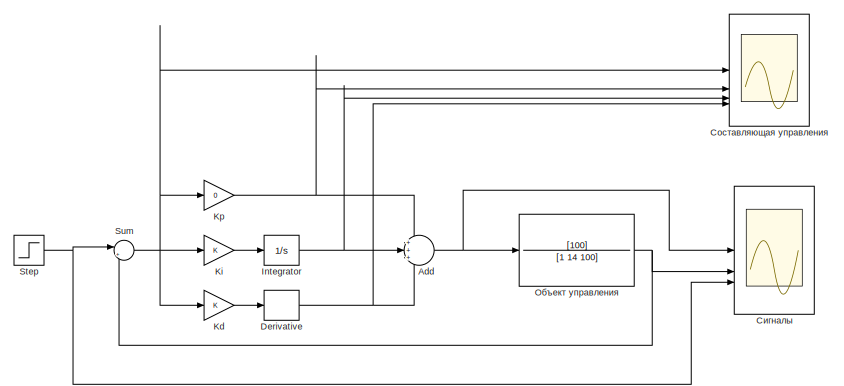
[diagram: root canvas - part 1/4, top center region]
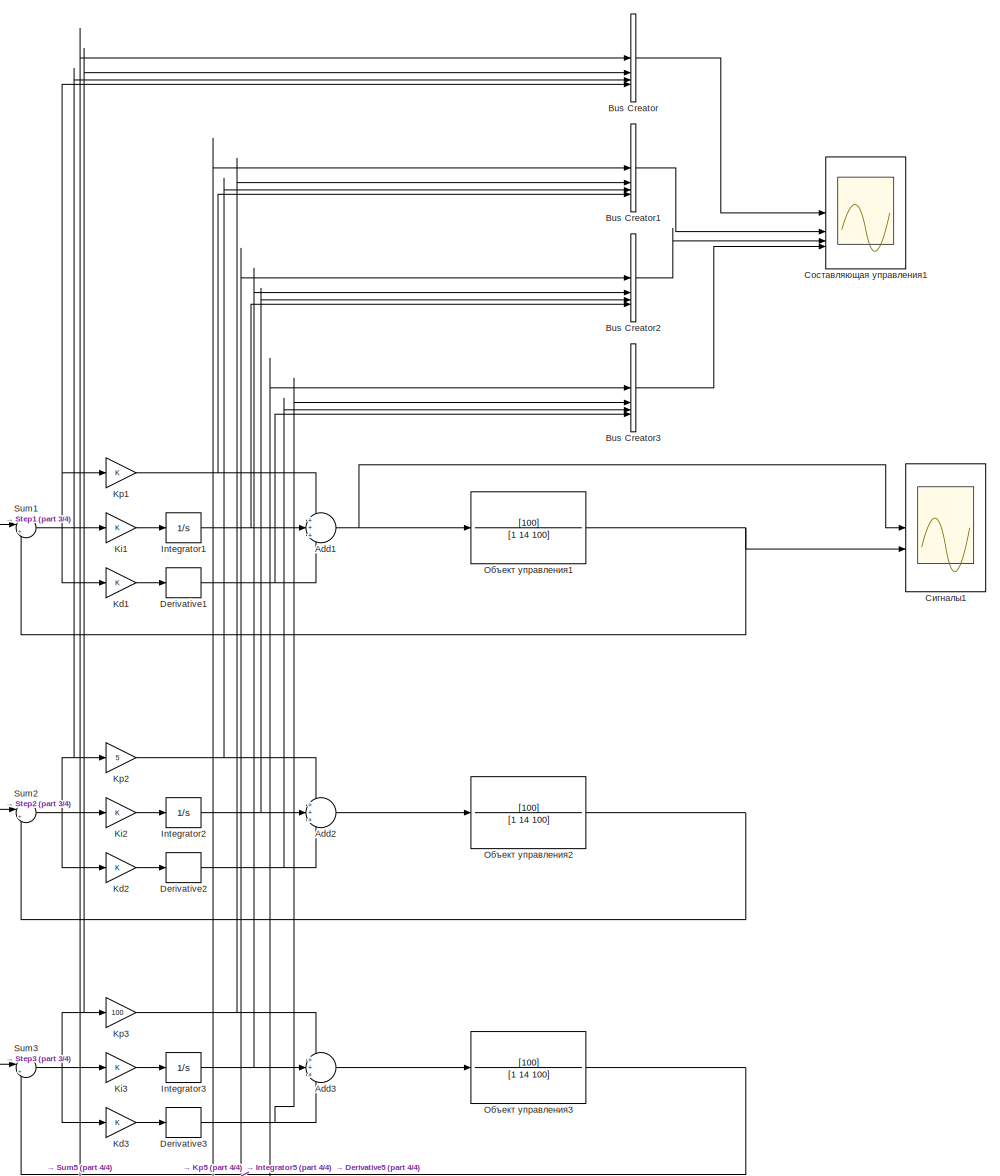
[diagram: root canvas - part 2/4, full width, middle band]
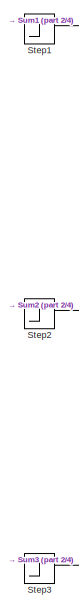
[diagram: root canvas - part 3/4, middle left region]
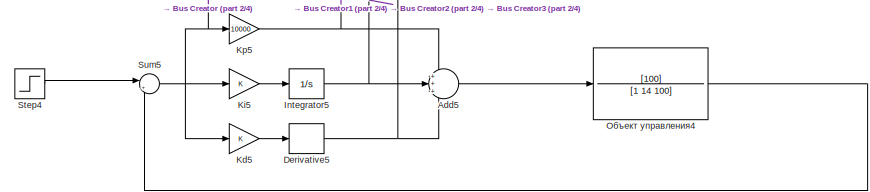
[diagram: root canvas - part 4/4, bottom center region]
MODEL slx_954c013bef70
KIND model
CONFIG AbsTol = auto
CONFIG EnableMultiTasking = off
CONFIG FixedStep = auto
CONFIG MaxStep = auto
CONFIG MinStep = auto
CONFIG RelTol = 1e-3
CONFIG SampleTimeConstraint = Unconstrained
CONFIG SolverName = VariableStepAuto
CONFIG StartTime = 0.0
CONFIG StopTime = 10
BLOCK [Sum] Add
  Inputs = +++
BLOCK [Sum] Add1
  Inputs = +++
BLOCK [Sum] Add2
  Inputs = +++
BLOCK [Sum] Add3
  Inputs = +++
BLOCK [Sum] Add5
  Inputs = +++
BLOCK [BusCreator] Bus Creator
  DisplayOption = bar
  InheritFromInputs = on
  Inputs = 4
BLOCK [BusCreator] Bus Creator1
  DisplayOption = bar
  InheritFromInputs = on
  Inputs = 4
BLOCK [BusCreator] Bus Creator2
  DisplayOption = bar
  InheritFromInputs = on
  Inputs = 4
BLOCK [BusCreator] Bus Creator3
  DisplayOption = bar
  InheritFromInputs = on
  Inputs = 4
BLOCK [Derivative] Derivative
BLOCK [Derivative] Derivative1
BLOCK [Derivative] Derivative2
BLOCK [Derivative] Derivative3
BLOCK [Derivative] Derivative5
BLOCK [Integrator] Integrator
BLOCK [Integrator] Integrator1
BLOCK [Integrator] Integrator2
BLOCK [Integrator] Integrator3
BLOCK [Integrator] Integrator5
BLOCK [Gain] Kd
BLOCK [Gain] Kd1
BLOCK [Gain] Kd2
BLOCK [Gain] Kd3
BLOCK [Gain] Kd5
BLOCK [Gain] Ki
BLOCK [Gain] Ki1
BLOCK [Gain] Ki2
BLOCK [Gain] Ki3
BLOCK [Gain] Ki5
BLOCK [Gain] Kp
  Gain = 0
BLOCK [Gain] Kp1
BLOCK [Gain] Kp2
  Gain = 5
BLOCK [Gain] Kp3
  Gain = 100
BLOCK [Gain] Kp5
  Gain = 10000
BLOCK [Step] Step
  SampleTime = 0
BLOCK [Step] Step1
  SampleTime = 0
BLOCK [Step] Step2
  SampleTime = 0
BLOCK [Step] Step3
  SampleTime = 0
BLOCK [Step] Step4
  SampleTime = 0
BLOCK [Sum] Sum
  Inputs = |+-
BLOCK [Sum] Sum1
  Inputs = |+-
BLOCK [Sum] Sum2
  Inputs = |+-
BLOCK [Sum] Sum3
  Inputs = |+-
BLOCK [Sum] Sum5
  Inputs = |+-
BLOCK [TransferFcn] Объект управления
  Denominator = [1 14 100]
  Numerator = [100]
BLOCK [TransferFcn] Объект управления1
  Denominator = [1 14 100]
  Numerator = [100]
BLOCK [TransferFcn] Объект управления2
  Denominator = [1 14 100]
  Numerator = [100]
BLOCK [TransferFcn] Объект управления3
  Denominator = [1 14 100]
  Numerator = [100]
BLOCK [TransferFcn] Объект управления4
  Denominator = [1 14 100]
  Numerator = [100]
BLOCK [Scope] Сигналы
  Floating = off
  NumInputPorts = 3
  ScopeSpecificationString = Simulink.scopes.TimeScopeBlockCfg('CurrentConfiguration', extmgr.ConfigurationSet(extmgr.Configuration('Core','General UI',true,'FigureColor',[1 1 1]),extmgr.Configuration('Core','Source UI',true),extmgr.Configuration('Sources','WiredSimulink',true),extmgr.Configuration('Visuals','Time Domain',true,'SerializedDisplays',{struct('MinYLimReal','-0.5','MaxYLimReal','1.5','YLabelReal','Amplitude','MinY...<+3274ch>
BLOCK [Scope] Сигналы1
  Floating = off
  NumInputPorts = 3
  ScopeSpecificationString = Simulink.scopes.TimeScopeBlockCfg('CurrentConfiguration', extmgr.ConfigurationSet(extmgr.Configuration('Core','General UI',true,'FigureColor',[1 1 1]),extmgr.Configuration('Core','Source UI',true),extmgr.Configuration('Sources','WiredSimulink',true,'DataLoggingVariableName','ScopeData1'),extmgr.Configuration('Visuals','Time Domain',true,'SerializedDisplays',{struct('MinYLimReal','-0.5','MaxYLimRea...<+3313ch>
BLOCK [Scope] Составляющая управления
  Floating = off
  NumInputPorts = 4
  ScopeSpecificationString = Simulink.scopes.TimeScopeBlockCfg('CurrentConfiguration', extmgr.ConfigurationSet(extmgr.Configuration('Core','General UI',true,'FigureColor',[1 1 1],'DisplayFullSourceName',true),extmgr.Configuration('Core','Source UI',true),extmgr.Configuration('Sources','WiredSimulink',true,'DataLoggingVariableName','ScopeData1'),extmgr.Configuration('Visuals','Time Domain',true,'SerializedDisplays',{struct('Mi...<+4230ch>
BLOCK [Scope] Составляющая управления1
  Floating = off
  NumInputPorts = 4
  ScopeSpecificationString = Simulink.scopes.TimeScopeBlockCfg('CurrentConfiguration', extmgr.ConfigurationSet(extmgr.Configuration('Core','General UI',true,'FigureColor',[1 1 1],'DisplayFullSourceName',true),extmgr.Configuration('Core','Source UI',true),extmgr.Configuration('Sources','WiredSimulink',true,'DataLoggingVariableName','ScopeData1'),extmgr.Configuration('Visuals','Time Domain',true,'SerializedDisplays',{struct('Mi...<+4352ch>
NET Add1:1 -> Объект управления1:1, Сигналы1:1
LINE Add2:1 -> Объект управления2:1
LINE Add3:1 -> Объект управления3:1
LINE Add5:1 -> Объект управления4:1
NET Add:1 -> Объект управления:1, Сигналы:1
LINE Bus Creator1:1 -> Составляющая управления1:2
LINE Bus Creator2:1 -> Составляющая управления1:3
LINE Bus Creator3:1 -> Составляющая управления1:4
LINE Bus Creator:1 -> Составляющая управления1:1
NET Derivative1:1 -> Add1:3, Bus Creator3:4
NET Derivative2:1 -> Add2:3, Bus Creator3:3
NET Derivative3:1 -> Add3:3, Bus Creator3:2
NET Derivative5:1 -> Add5:3, Bus Creator3:1
NET Derivative:1 -> Add:3, Составляющая управления:4
NET Integrator1:1 -> Add1:2, Bus Creator2:4
NET Integrator2:1 -> Add2:2, Bus Creator2:3
NET Integrator3:1 -> Add3:2, Bus Creator2:2
NET Integrator5:1 -> Add5:2, Bus Creator2:1
NET Integrator:1 -> Add:2, Составляющая управления:3
LINE Kd1:1 -> Derivative1:1
LINE Kd2:1 -> Derivative2:1
LINE Kd3:1 -> Derivative3:1
LINE Kd5:1 -> Derivative5:1
LINE Kd:1 -> Derivative:1
LINE Ki1:1 -> Integrator1:1
LINE Ki2:1 -> Integrator2:1
LINE Ki3:1 -> Integrator3:1
LINE Ki5:1 -> Integrator5:1
LINE Ki:1 -> Integrator:1
NET Kp1:1 -> Add1:1, Bus Creator1:4
NET Kp2:1 -> Add2:1, Bus Creator1:3
NET Kp3:1 -> Add3:1, Bus Creator1:2
NET Kp5:1 -> Add5:1, Bus Creator1:1
NET Kp:1 -> Add:1, Составляющая управления:2
LINE Step1:1 -> Sum1:1
LINE Step2:1 -> Sum2:1
LINE Step3:1 -> Sum3:1
LINE Step4:1 -> Sum5:1
NET Step:1 -> Sum:1, Сигналы:3
NET Sum1:1 -> Bus Creator:4, Kd1:1, Ki1:1, Kp1:1
NET Sum2:1 -> Bus Creator:3, Kd2:1, Ki2:1, Kp2:1
NET Sum3:1 -> Bus Creator:2, Kd3:1, Ki3:1, Kp3:1
NET Sum5:1 -> Bus Creator:1, Kd5:1, Ki5:1, Kp5:1
NET Sum:1 -> Kd:1, Ki:1, Kp:1, Составляющая управления:1
NET Объект управления1:1 -> Sum1:2, Сигналы1:2
LINE Объект управления2:1 -> Sum2:2
LINE Объект управления3:1 -> Sum3:2
LINE Объект управления4:1 -> Sum5:2
NET Объект управления:1 -> Sum:2, Сигналы:2
note: NET lines group one-source signal fan-out (src -> all destinations, sorted); 1:1 wires keep LINE
